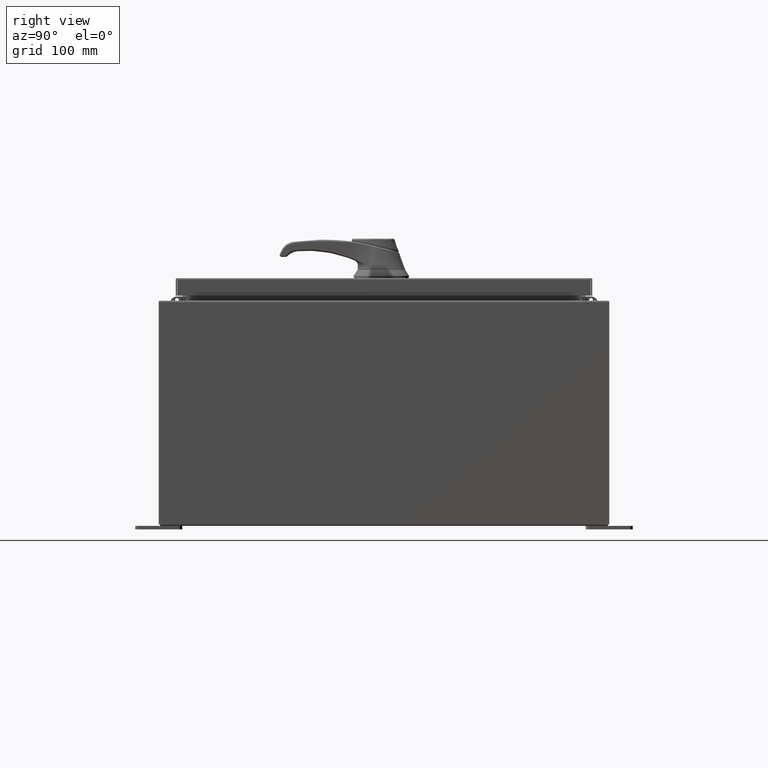
[diagram: clean part render]
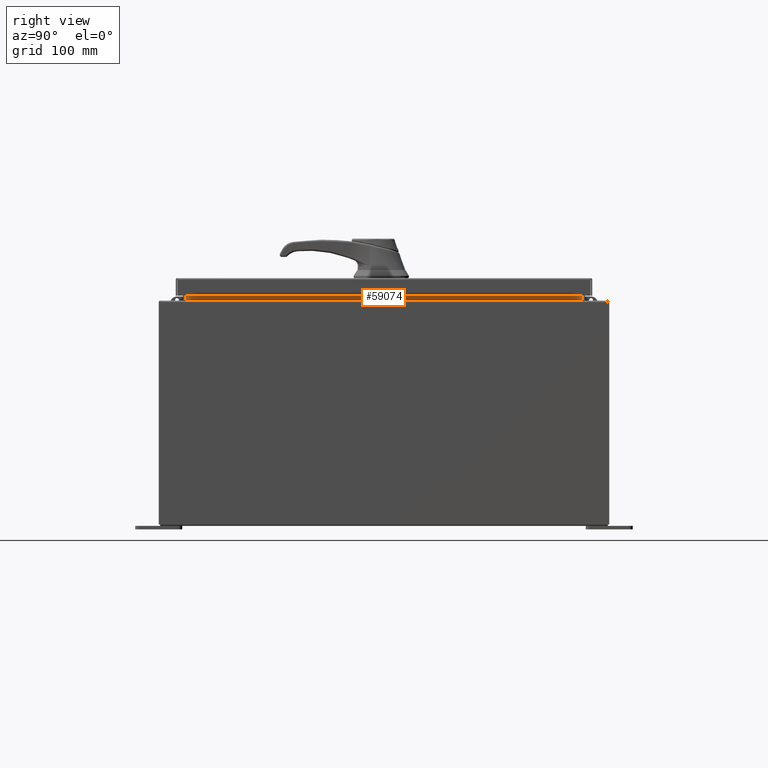
[diagram: same view with one face highlighted and labeled with its STEP entity id]
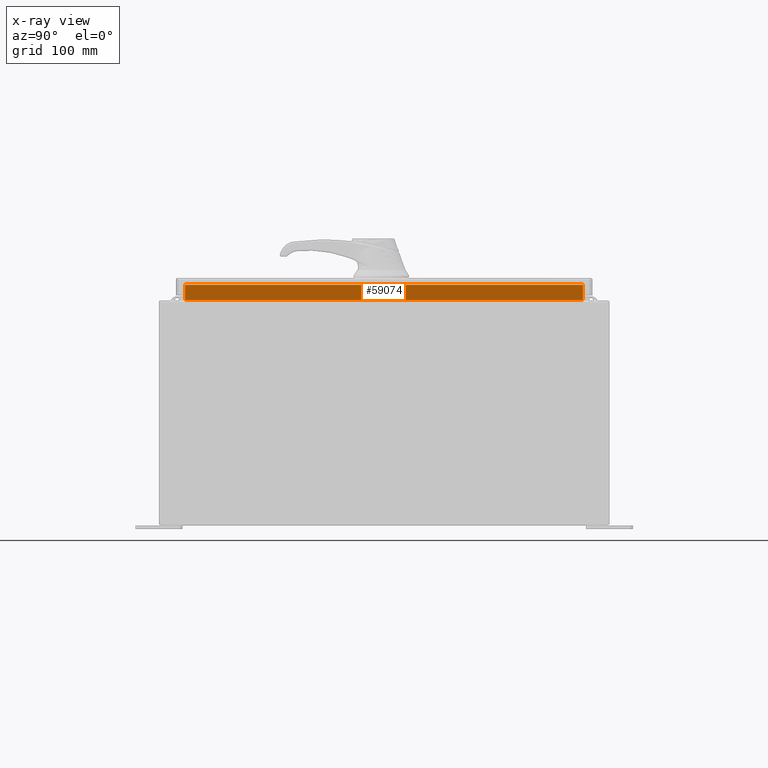
[diagram: x-ray of the same camera — body ghosted, the highlighted face saturated]
A machine part, right view. The second image highlights one B-rep face of the part: STEP entity #59074.
The next image is the same camera in x-ray: the body ghosted, the highlighted face saturated — about 0% of this face is hidden behind the body in this view.
In plain terms, the highlighted planar face has unit normal (1, 0, -0).
Its self-contained STEP definition (entity closure, byte-faithful):
#6373 = CARTESIAN_POINT ( 'NONE',  ( 10.69970000000004600, -10.59375000000000200, 12.85060000000001100 ) ) ;
#7370 = VERTEX_POINT ( 'NONE', #48151 ) ;
#10947 = CARTESIAN_POINT ( 'NONE',  ( 10.69969999999998400, 0.0000000000000000000, -5.054352789851410500E-014 ) ) ;
#14748 = LINE ( 'NONE', #6373, #106949 ) ;
#15158 = EDGE_CURVE ( 'NONE', #49545, #7370, #14748, .T. ) ;
#16600 = EDGE_CURVE ( 'NONE', #74808, #32697, #18740, .T. ) ;
#18740 = LINE ( 'NONE', #112110, #110896 ) ;
#19699 = DIRECTION ( 'NONE',  ( -4.723826639860386500E-015, 0.0000000000000000000, -1.000000000000000000 ) ) ;
#20448 = FACE_OUTER_BOUND ( 'NONE', #70408, .T. ) ;
#32183 = CARTESIAN_POINT ( 'NONE',  ( 10.69970000000004800, 10.59374999999999600, 12.76290000000001100 ) ) ;
#32697 = VERTEX_POINT ( 'NONE', #84982 ) ;
#38524 = CARTESIAN_POINT ( 'NONE',  ( 10.69970000000004800, -10.59375000000000000, 12.76290000000001100 ) ) ;
#39708 = LINE ( 'NONE', #58358, #54585 ) ;
#41339 = VECTOR ( 'NONE', #107811, 39.37007874015748100 ) ;
#43838 = EDGE_CURVE ( 'NONE', #7370, #74808, #87433, .T. ) ;
#46237 = EDGE_CURVE ( 'NONE', #32697, #49545, #39708, .T. ) ;
#47637 = ORIENTED_EDGE ( 'NONE', *, *, #15158, .F. ) ;
#48151 = CARTESIAN_POINT ( 'NONE',  ( 10.69970000000004600, -10.59375000000000200, 12.76290000000001100 ) ) ;
#49545 = VERTEX_POINT ( 'NONE', #91803 ) ;
#49615 = DIRECTION ( 'NONE',  ( 4.723826639860397600E-015, -0.0000000000000000000, 1.000000000000000000 ) ) ;
#54585 = VECTOR ( 'NONE', #75803, 39.37007874015748100 ) ;
#57978 = ORIENTED_EDGE ( 'NONE', *, *, #16600, .F. ) ;
#58358 = CARTESIAN_POINT ( 'NONE',  ( 10.69970000000004100, 10.59374999999999600, 11.93830000000000900 ) ) ;
#59074 = ADVANCED_FACE ( 'NONE', ( #20448 ), #106067, .T. ) ;
#60229 = DIRECTION ( 'NONE',  ( -4.723826639860386500E-015, -0.0000000000000000000, -1.000000000000000000 ) ) ;
#70408 = EDGE_LOOP ( 'NONE', ( #57978, #85630, #47637, #87419 ) ) ;
#71640 = DIRECTION ( 'NONE',  ( 1.000000000000000000, 0.0000000000000000000, -4.723826639860386500E-015 ) ) ;
#74808 = VERTEX_POINT ( 'NONE', #32183 ) ;
#75803 = DIRECTION ( 'NONE',  ( 1.031494227696241200E-016, -1.000000000000000000, 2.062988455392482400E-016 ) ) ;
#84982 = CARTESIAN_POINT ( 'NONE',  ( 10.69970000000004100, 10.59374999999998400, 11.93830000000001200 ) ) ;
#85630 = ORIENTED_EDGE ( 'NONE', *, *, #43838, .F. ) ;
#87419 = ORIENTED_EDGE ( 'NONE', *, *, #46237, .F. ) ;
#87433 = LINE ( 'NONE', #38524, #41339 ) ;
#91803 = CARTESIAN_POINT ( 'NONE',  ( 10.69970000000004100, -10.59375000000000200, 11.93830000000001200 ) ) ;
#91836 = AXIS2_PLACEMENT_3D ( 'NONE', #10947, #71640, #19699 ) ;
#106067 = PLANE ( 'NONE',  #91836 ) ;
#106949 = VECTOR ( 'NONE', #49615, 39.37007874015748100 ) ;
#107811 = DIRECTION ( 'NONE',  ( 0.0000000000000000000, 1.000000000000000000, 0.0000000000000000000 ) ) ;
#110896 = VECTOR ( 'NONE', #60229, 39.37007874015748100 ) ;
#112110 = CARTESIAN_POINT ( 'NONE',  ( 10.69970000000004100, 10.59374999999999600, 11.92530000000000900 ) ) ;